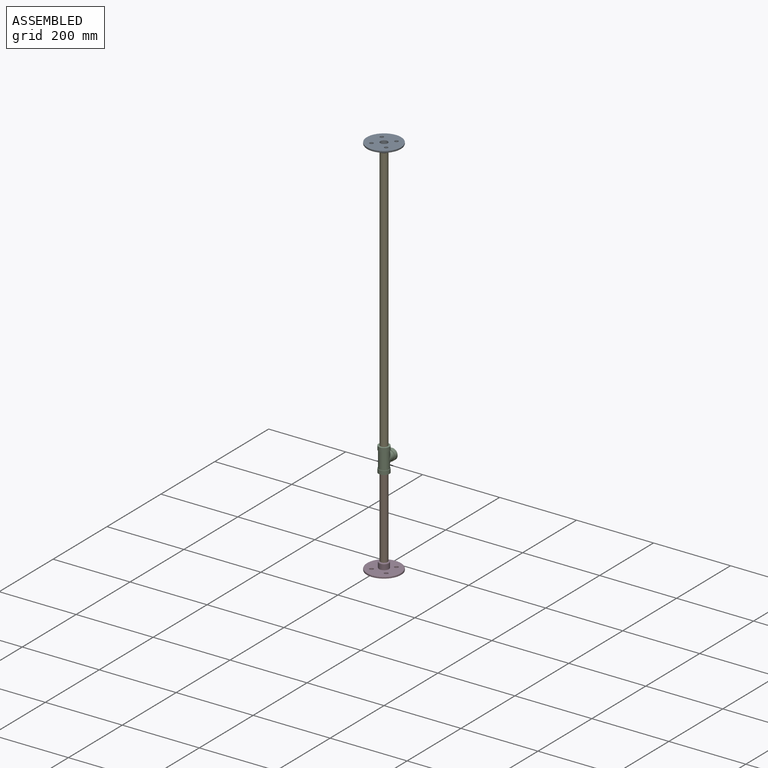
[diagram: assembled view]
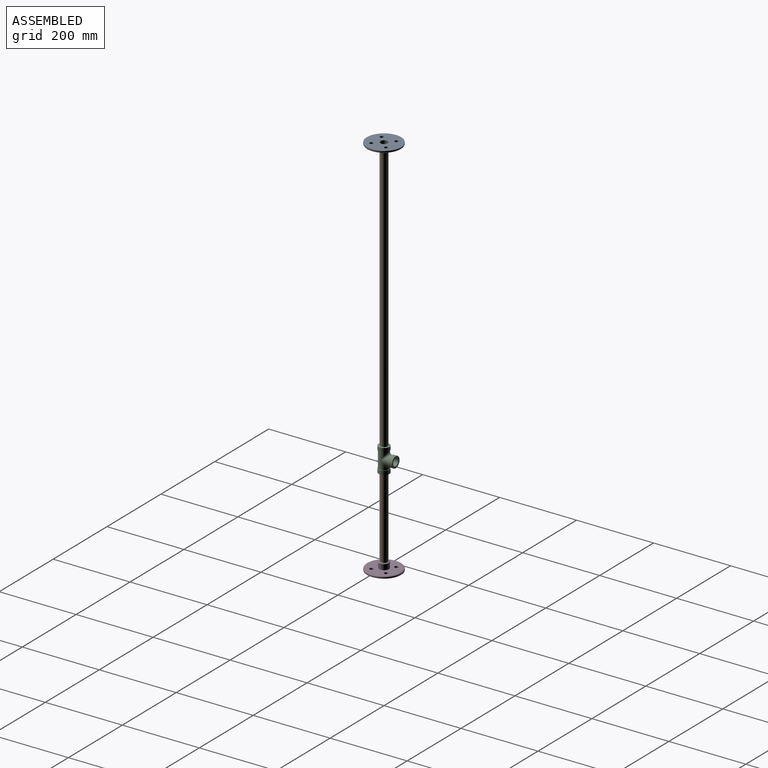
[diagram: assembled view, second angle]
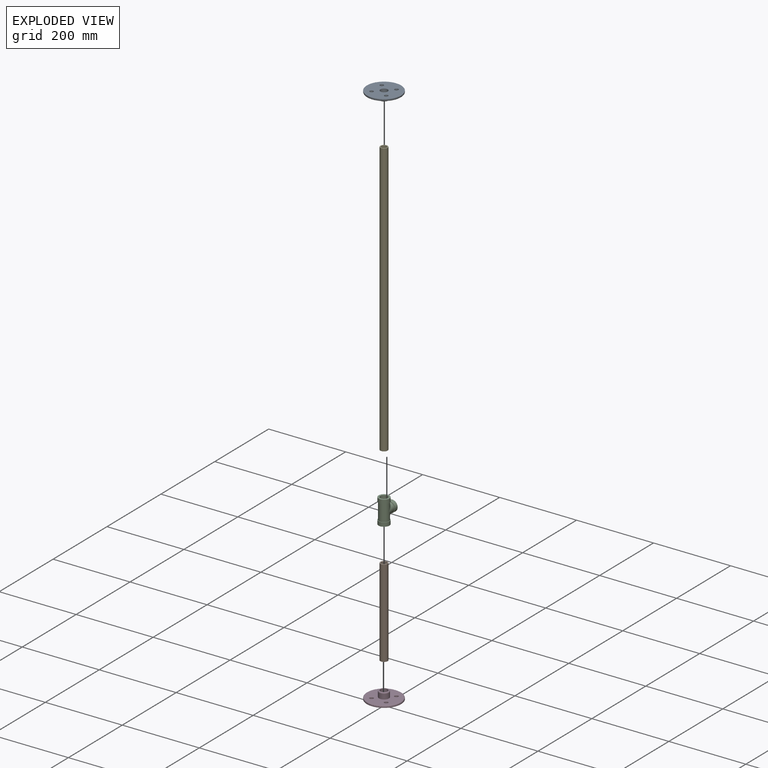
[diagram: exploded view]
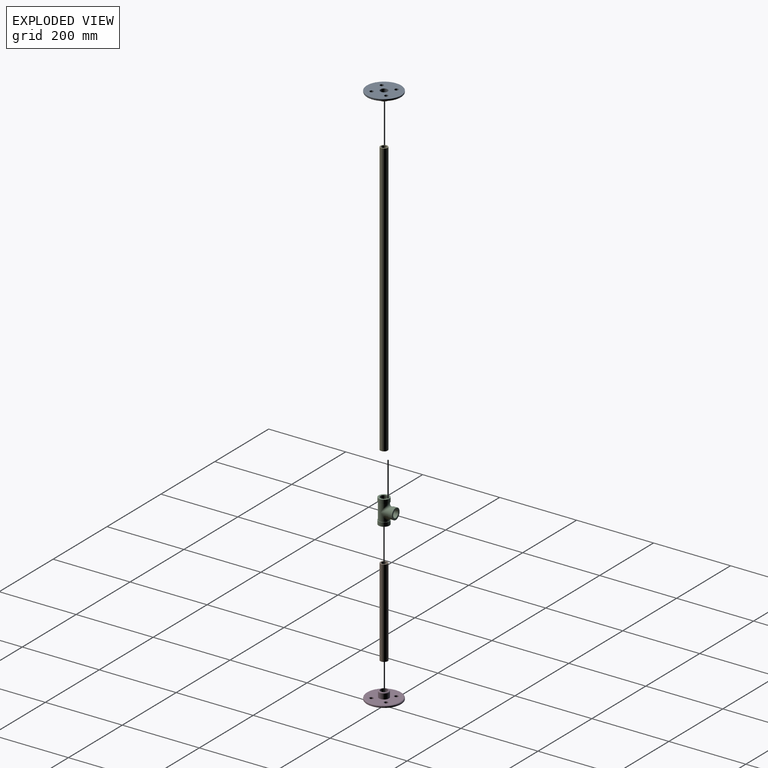
[diagram: exploded view, second angle]
ASSEMBLY  parts=5 mates=4
PART A: 16 faces, bbox 96.2x96.2x20.8 mm
  f0: cylinder r=44.45mm len=88.9mm, axis (0,0,-1), area 709.4mm2, adj f2,f11
  f1: plane 83.82x83.82mm, normal (0,0,1), area 4537.7mm2, adj f3,f11,f12,f13,f14,f15
  f2: plane 88.9x88.9mm, normal (0,0,-1), area 5637.1mm2, adj f0,f5,f6,f7,f8,f9
  f3: cylinder r=12.9mm len=25.81mm, axis (0,0,-1), area 1070.8mm2, adj f1,f10
  f4: plane 20.73x20.73mm, normal (0,0,1), area 52.4mm2, adj f5,f10
  f5: cylinder r=9.53mm len=20.83mm, axis (0,0,1), area 1246.5mm2, adj f2,f4
  f6: cylinder r=4.76mm len=9.53mm, axis (0,0,1), area 114mm2, adj f2,f15
  f7: cylinder r=4.76mm len=9.53mm, axis (0,0,1), area 114mm2, adj f2,f14
  f8: cylinder r=4.76mm len=9.53mm, axis (0,0,1), area 114mm2, adj f2,f13
  f9: cylinder r=4.76mm len=9.53mm, axis (0,0,1), area 114mm2, adj f2,f12
  f10: torus R=10.36mm, axis (0,0,1), area 300.3mm2, adj f3,f4
  f11: torus R=41.91mm, axis (0,0,1), area 1091.2mm2, adj f0,f1
  f12: torus R=6.03mm, axis (0,0,1), area 65.5mm2, adj f1,f9
  f13: torus R=6.03mm, axis (0,0,1), area 65.5mm2, adj f1,f8
  f14: torus R=6.03mm, axis (0,0,1), area 65.5mm2, adj f1,f7
  f15: torus R=6.03mm, axis (0,0,1), area 65.5mm2, adj f1,f6
PART B: 4 faces, bbox 19.1x19.1x228.6 mm
  f0: cylinder r=6.65mm len=228.6mm, axis (0,0,-1), area 9558.5mm2, adj f2,f3
  f1: cylinder r=9.53mm len=228.6mm, axis (0,0,-1), area 13681.1mm2, adj f2,f3
  f2: plane 19.05x19.05mm, normal (0,0,1), area 145.9mm2, adj f0,f1
  f3: plane 19.05x19.05mm, normal (0,0,-1), area 145.9mm2, adj f0,f1
PART C: 19 faces, bbox 63.9x28.7x45 mm
  f0: cylinder r=12.9mm len=25.81mm, axis (0,0,-1), area 653.7mm2, adj f7,f8,f18
  f1: cylinder r=12.9mm len=43.18mm, axis (-1,0,0), area 2507mm2, adj f7,f8,f10,f16
  f2: cylinder r=9.53mm len=63.5mm, axis (-1,0,0), area 3054mm2, adj f3,f4,f11,f12,f13,f14
  f3: plane 28.35x28.35mm, normal (1,0,0), area 346.1mm2, adj f2,f15
  f4: plane 28.35x28.35mm, normal (-1,0,0), area 346.1mm2, adj f2,f9
  f5: plane 28.35x28.35mm, normal (0,0,1), area 346.1mm2, adj f6,f17
  f6: cylinder r=9.53mm len=29.53mm, axis (0,0,-1), area 1073.3mm2, adj f5,f11,f12,f13,f14
  f7: bspline ~25.81x19.25mm, area 296.2mm2, adj f0,f1
  f8: bspline ~25.81x19.25mm, area 296.2mm2, adj f0,f1
  f9: cylinder r=14.17mm len=28.35mm, axis (-1,0,0), area 904.8mm2, adj f4,f10
  f10: plane 28.35x28.35mm, normal (1,0,0), area 108mm2, adj f1,f9
  f11: plane 4.3x0.42mm, normal (0,0,1), area 0.1mm2, adj f2,f6,f13,f14
  f12: plane 4.3x0.42mm, normal (0,0,1), area 0.1mm2, adj f2,f6,f13,f14
  f13: bspline ~19.22x19.22mm, area 365.8mm2, adj f2,f6,f11,f12
  f14: bspline ~19.22x19.22mm, area 365.8mm2, adj f2,f6,f11,f12
  f15: cylinder r=14.17mm len=28.35mm, axis (1,0,0), area 904.8mm2, adj f3,f16
  f16: plane 28.35x28.35mm, normal (-1,0,0), area 108mm2, adj f1,f15
  f17: cylinder r=14.17mm len=28.35mm, axis (0,0,1), area 904.8mm2, adj f5,f18
  f18: plane 28.35x28.35mm, normal (0,0,-1), area 108mm2, adj f0,f17
PART D: same geometry as A
PART E: 4 faces, bbox 19.1x19.1x711.2 mm
  f0: cylinder r=6.65mm len=711.2mm, axis (0,0,-1), area 29737.6mm2, adj f2,f3
  f1: cylinder r=9.53mm len=711.2mm, axis (0,0,-1), area 42563.4mm2, adj f2,f3
  f2: plane 19.05x19.05mm, normal (0,0,1), area 145.9mm2, adj f0,f1
  f3: plane 19.05x19.05mm, normal (0,0,-1), area 145.9mm2, adj f0,f1
PLACE A rot(axis=(0.71,-0.71,0),180deg) t=(0,0,1004.32)mm
PLACE B t=(-25.4,0,124.97)mm
PLACE C rot(axis=(-0.58,0.58,0.58),120deg) t=(0,0,260.86)mm
PLACE D at identity
PLACE E rot(axis=(0,0,-1),90deg) t=(0,0,638.05)mm
MATE fastened B.f0 <-> D.f0  axis (0,0,1) through (0,0,10.67)mm
MATE fastened C.f1 <-> B.f0  axis (0,0,1) through (0,0,239.27)mm
MATE fastened E.f0 <-> C.f1  axis (0,0,1) through (0,0,282.45)mm
MATE fastened A.f0 <-> E.f0  axis (0,0,1) through (0,0,993.65)mm
